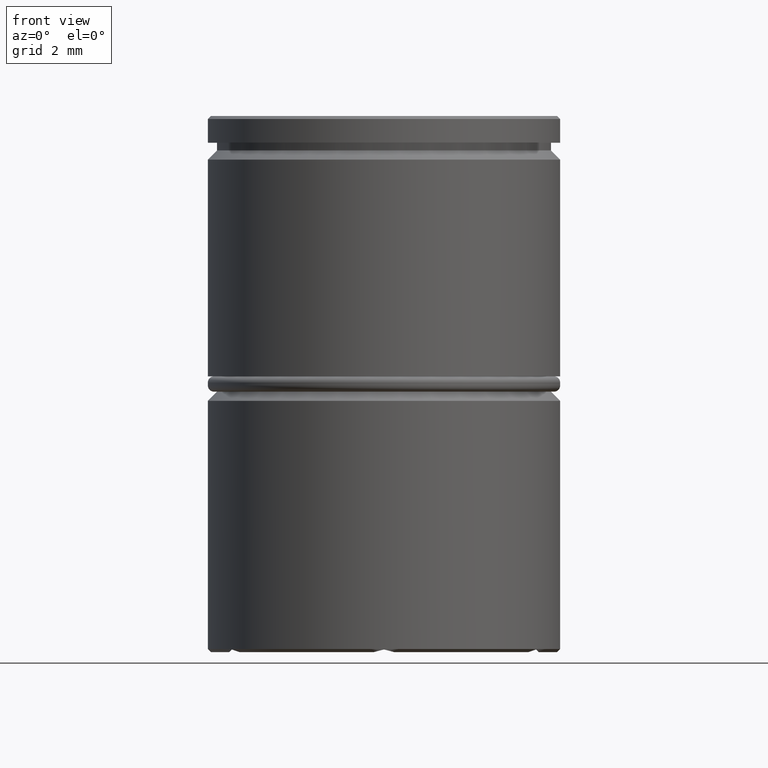
[diagram: clean part render]
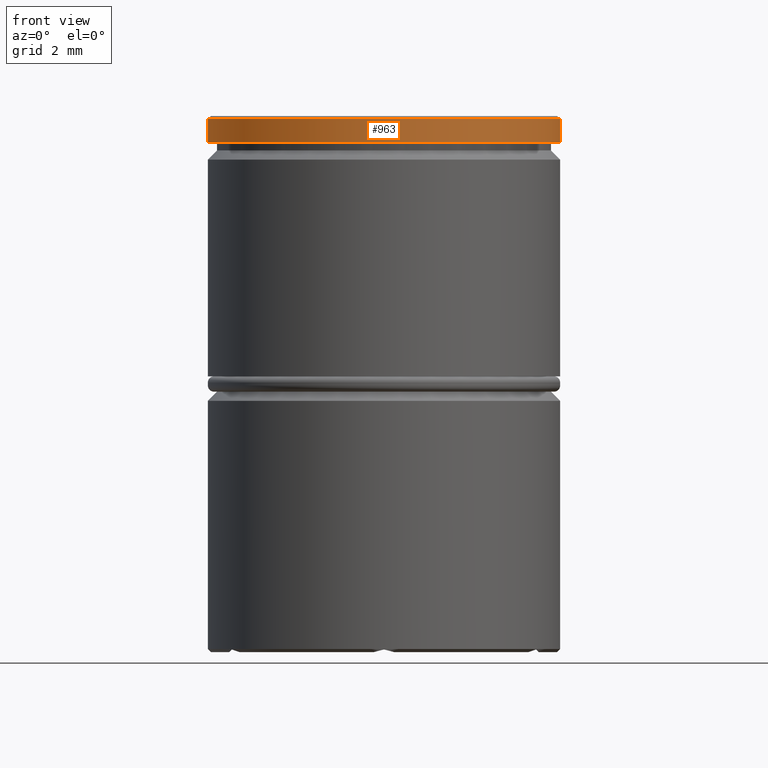
[diagram: same view with one face highlighted and labeled with its STEP entity id]
A machine part, front view. The second image highlights one B-rep face of the part: STEP entity #963.
In plain terms, the highlighted cylindrical surface (partial cylindrical patch) has radius 5.75 mm, axis along (-0, -0, 1).
Its self-contained STEP definition (entity closure, byte-faithful):
#14 = EDGE_CURVE ( 'NONE', #564, #908, #1004, .T. ) ;
#44 = AXIS2_PLACEMENT_3D ( 'NONE', #492, #930, #1044 ) ;
#46 = CARTESIAN_POINT ( 'NONE',  ( -5.750000000000000000, 7.041719095097280880E-16, -0.8749999999999998890 ) ) ;
#106 = ORIENTED_EDGE ( 'NONE', *, *, #1246, .F. ) ;
#109 = FACE_OUTER_BOUND ( 'NONE', #379, .T. ) ;
#116 = DIRECTION ( 'NONE',  ( -0.000000000000000000, -0.000000000000000000, 1.000000000000000000 ) ) ;
#268 = DIRECTION ( 'NONE',  ( 1.000000000000000000, 0.000000000000000000, 0.000000000000000000 ) ) ;
#372 = CARTESIAN_POINT ( 'NONE',  ( 5.750000000000000000, 0.000000000000000000, -0.8749999999999998890 ) ) ;
#379 = EDGE_LOOP ( 'NONE', ( #106, #729, #558, #1031 ) ) ;
#396 = VERTEX_POINT ( 'NONE', #746 ) ;
#400 = EDGE_CURVE ( 'NONE', #908, #396, #728, .T. ) ;
#415 = CYLINDRICAL_SURFACE ( 'NONE', #1280, 5.750000000000000000 ) ;
#492 = CARTESIAN_POINT ( 'NONE',  ( 0.000000000000000000, 0.000000000000000000, -0.8749999999999998890 ) ) ;
#510 = DIRECTION ( 'NONE',  ( -0.000000000000000000, -0.000000000000000000, 1.000000000000000000 ) ) ;
#558 = ORIENTED_EDGE ( 'NONE', *, *, #400, .T. ) ;
#564 = VERTEX_POINT ( 'NONE', #46 ) ;
#575 = VECTOR ( 'NONE', #1033, 1000.000000000000000 ) ;
#728 = LINE ( 'NONE', #1378, #1367 ) ;
#729 = ORIENTED_EDGE ( 'NONE', *, *, #14, .T. ) ;
#731 = CARTESIAN_POINT ( 'NONE',  ( 0.000000000000000000, 0.000000000000000000, 0.000000000000000000 ) ) ;
#746 = CARTESIAN_POINT ( 'NONE',  ( 5.750000000000000000, 0.000000000000000000, -0.09999999999999506506 ) ) ;
#803 = LINE ( 'NONE', #1016, #575 ) ;
#850 = CIRCLE ( 'NONE', #873, 5.750000000000000000 ) ;
#873 = AXIS2_PLACEMENT_3D ( 'NONE', #1136, #1235, #268 ) ;
#908 = VERTEX_POINT ( 'NONE', #372 ) ;
#930 = DIRECTION ( 'NONE',  ( -0.000000000000000000, -0.000000000000000000, 1.000000000000000000 ) ) ;
#963 = ADVANCED_FACE ( 'NONE', ( #109 ), #415, .T. ) ;
#999 = CARTESIAN_POINT ( 'NONE',  ( -5.750000000000000000, 7.041719095097280880E-16, -0.09999999999999506506 ) ) ;
#1004 = CIRCLE ( 'NONE', #44, 5.750000000000000000 ) ;
#1016 = CARTESIAN_POINT ( 'NONE',  ( -5.750000000000000000, 7.041719095097280880E-16, 0.000000000000000000 ) ) ;
#1031 = ORIENTED_EDGE ( 'NONE', *, *, #1299, .T. ) ;
#1033 = DIRECTION ( 'NONE',  ( -0.000000000000000000, -0.000000000000000000, 1.000000000000000000 ) ) ;
#1044 = DIRECTION ( 'NONE',  ( 1.000000000000000000, 0.000000000000000000, 0.000000000000000000 ) ) ;
#1136 = CARTESIAN_POINT ( 'NONE',  ( 0.000000000000000000, 0.000000000000000000, -0.09999999999999506506 ) ) ;
#1146 = VERTEX_POINT ( 'NONE', #999 ) ;
#1235 = DIRECTION ( 'NONE',  ( 0.000000000000000000, 0.000000000000000000, -1.000000000000000000 ) ) ;
#1246 = EDGE_CURVE ( 'NONE', #564, #1146, #803, .T. ) ;
#1277 = DIRECTION ( 'NONE',  ( 1.000000000000000000, 0.000000000000000000, 0.000000000000000000 ) ) ;
#1280 = AXIS2_PLACEMENT_3D ( 'NONE', #731, #116, #1277 ) ;
#1299 = EDGE_CURVE ( 'NONE', #396, #1146, #850, .T. ) ;
#1367 = VECTOR ( 'NONE', #510, 1000.000000000000000 ) ;
#1378 = CARTESIAN_POINT ( 'NONE',  ( 5.750000000000000000, 0.000000000000000000, 0.000000000000000000 ) ) ;